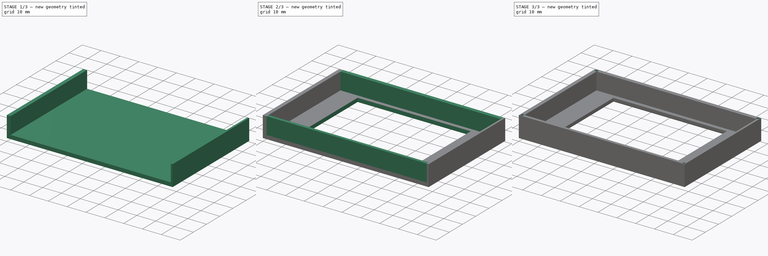
[diagram: build sequence overview — one tinted view per stage of 3, left to right]
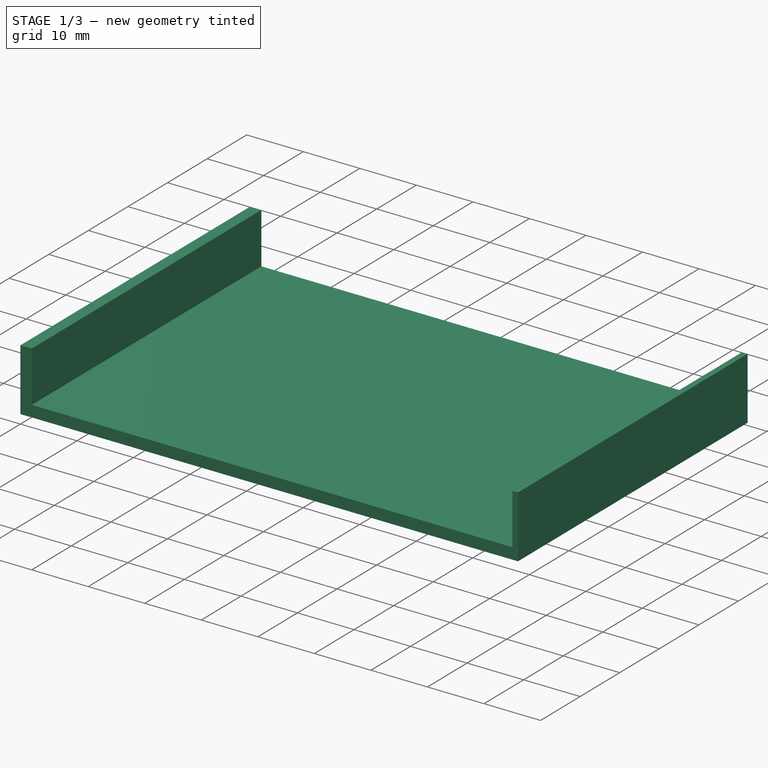
[diagram: stage 1 of 3 — iso view after this stage's code; geometry added in this stage tinted green]
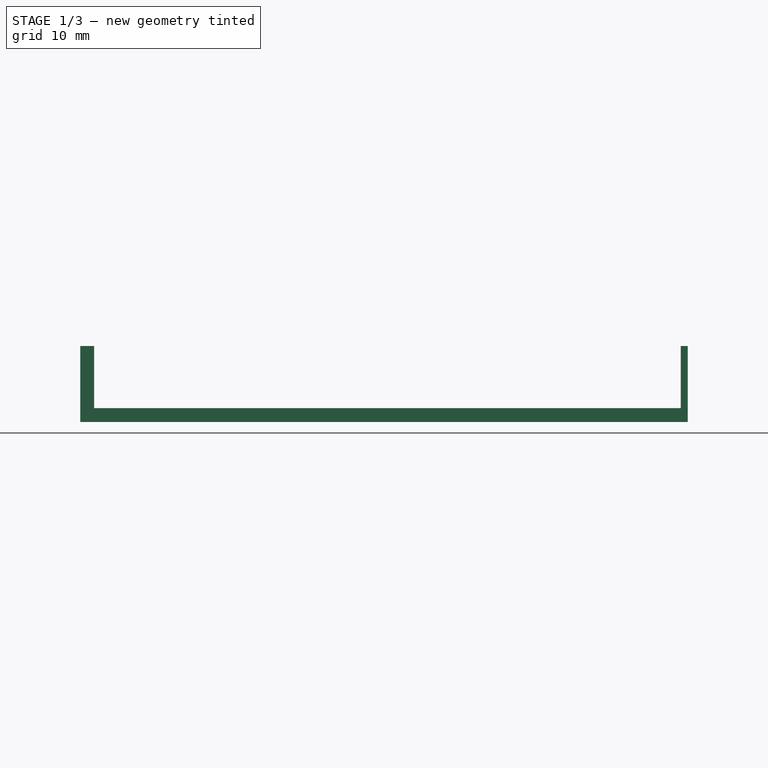
[diagram: stage 1 of 3 — front view after this stage's code; geometry added in this stage tinted green]
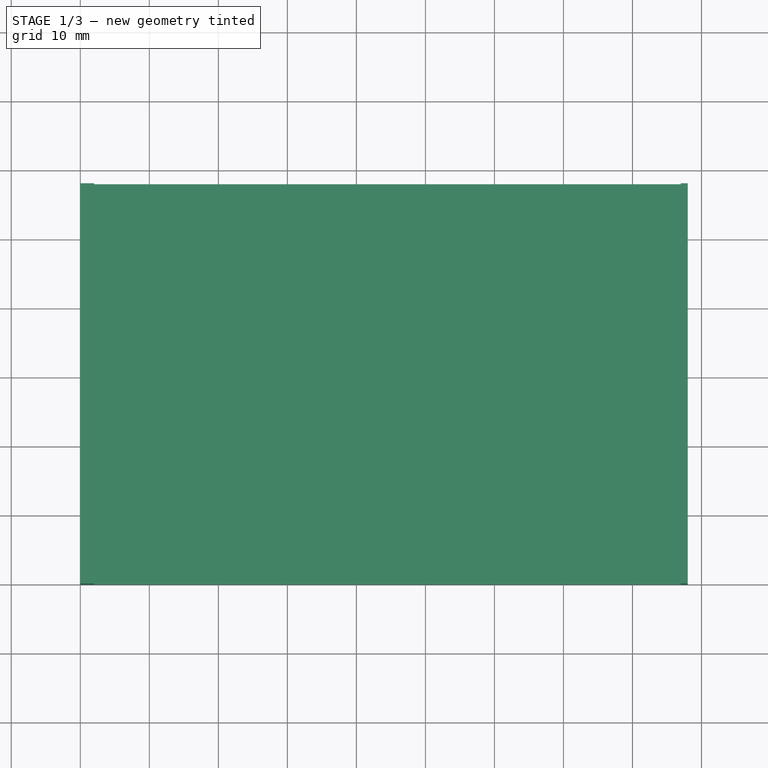
[diagram: stage 1 of 3 — top view after this stage's code; geometry added in this stage tinted green]
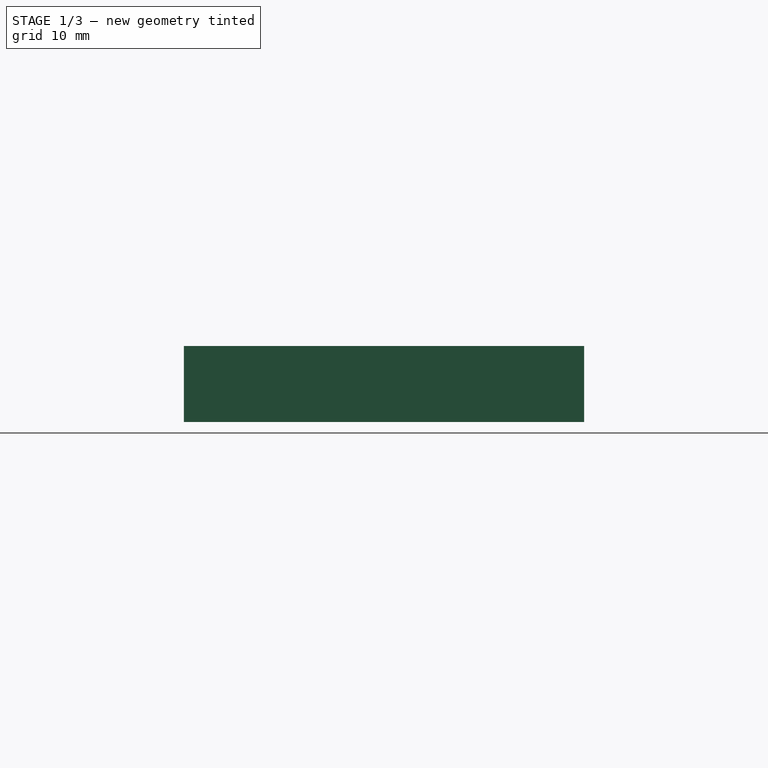
[diagram: stage 1 of 3 — right view after this stage's code; geometry added in this stage tinted green]
FCSTD DOCUMENT  (FreeCAD 1.0R39109 (Git))
Label: Upper_pad_outside
License: All rights reserved
LicenseURL: http://en.wikipedia.org/wiki/All_rights_reserved
objects: Sketcher::SketchObject×5, PartDesign::Pad×3, PartDesign::Pocket×2, PartDesign::Fillet×1, PartDesign::Body×1
note: 29 computed .brp shape members not serialized (recipe doc carries the construction recipe); baked Part::Feature solids carry a one-line shape summary decoded from their .brp

FEATURE [Sketcher::SketchObject] Sketch
  ArcFitTolerance = 1e-06
  AttachmentSupport = -> [XY_Plane]
  FullyConstrained = true
  MakeInternals = false
  MapMode = 5
  sketch-geometry (4):
    g0: LineSegment StartX=0 StartY=0 StartZ=0 EndX=88 EndY=0 EndZ=0
    g1: LineSegment StartX=88 StartY=0 StartZ=0 EndX=88 EndY=58 EndZ=0
    g2: LineSegment StartX=88 StartY=58 StartZ=0 EndX=0 EndY=58 EndZ=0
    g3: LineSegment StartX=0 StartY=58 StartZ=0 EndX=0 EndY=0 EndZ=0
  constraints (11):
    c: Coincident(g0,g1)
    c: Coincident(g1,g2)
    c: Coincident(g2,g3)
    c: Coincident(g3,g0)
    c: Horizontal(g0)
    c: Horizontal(g2)
    c: Vertical(g1)
    c: Vertical(g3)
    c: Distance(g1,g3) = 88
    c: Distance(g0,g2) = 58
    c: Coincident(g0,g-1)
FEATURE [PartDesign::Pad] Pad
  Direction = (0,0,1)
  Length = 2
  Length2 = 10
  Profile = -> Sketch
  ReferenceAxis = -> Sketch [N_Axis]
  Suppressed = false
  Type = 0
FEATURE [Sketcher::SketchObject] Sketch001
  ArcFitTolerance = 1e-06
  AttachmentSupport = -> [Pad]
  FullyConstrained = true
  MakeInternals = false
  MapMode = 5
  Placement = pos=(0,0,2) rot=(0,0,1;0rad)
  sketch-geometry (8):
    g0: LineSegment StartX=0 StartY=0 StartZ=0 EndX=2 EndY=0 EndZ=0
    g1: LineSegment StartX=2 StartY=0 StartZ=0 EndX=2 EndY=58 EndZ=0
    g2: LineSegment StartX=2 StartY=58 StartZ=0 EndX=0 EndY=58 EndZ=0
    g3: LineSegment StartX=0 StartY=58 StartZ=0 EndX=0 EndY=0 EndZ=0
    g4: LineSegment StartX=88 StartY=1e-06 StartZ=0 EndX=88 EndY=58 EndZ=0
    g5: LineSegment StartX=88 StartY=58 StartZ=0 EndX=87 EndY=58 EndZ=0
    g6: LineSegment StartX=87 StartY=58 StartZ=0 EndX=87 EndY=1e-06 EndZ=0
    g7: LineSegment StartX=87 StartY=1e-06 StartZ=0 EndX=88 EndY=1e-06 EndZ=0
  constraints (23):
    c: Coincident(g0,g1)
    c: Coincident(g1,g2)
    c: Coincident(g2,g3)
    c: Coincident(g3,g0)
    c: Horizontal(g0)
    c: Horizontal(g2)
    c: Vertical(g1)
    c: Vertical(g3)
    c: Distance(g1,g3) = 2
    c: Distance(g0,g2) = 58
    c: Coincident(g0,g-1)
    c: Coincident(g4,g5)
    c: Coincident(g5,g6)
    c: Coincident(g6,g7)
    c: Coincident(g7,g4)
    c: Vertical(g4)
    c: Vertical(g6)
    c: Horizontal(g5)
    c: Horizontal(g7)
    c: Distance(g4,g6) = 1
    c: Distance(g5,g7) = 58
    c: Distance(g6,g1) = 85
    c: Distance(g-1,g7) = 1e-06
FEATURE [PartDesign::Pad] Pad001
  BaseFeature = -> Pad
  Direction = (0,0,1)
  Length = 9
  Length2 = 10
  Profile = -> Sketch001
  ReferenceAxis = -> Sketch001 [N_Axis]
  Suppressed = false
  Type = 0
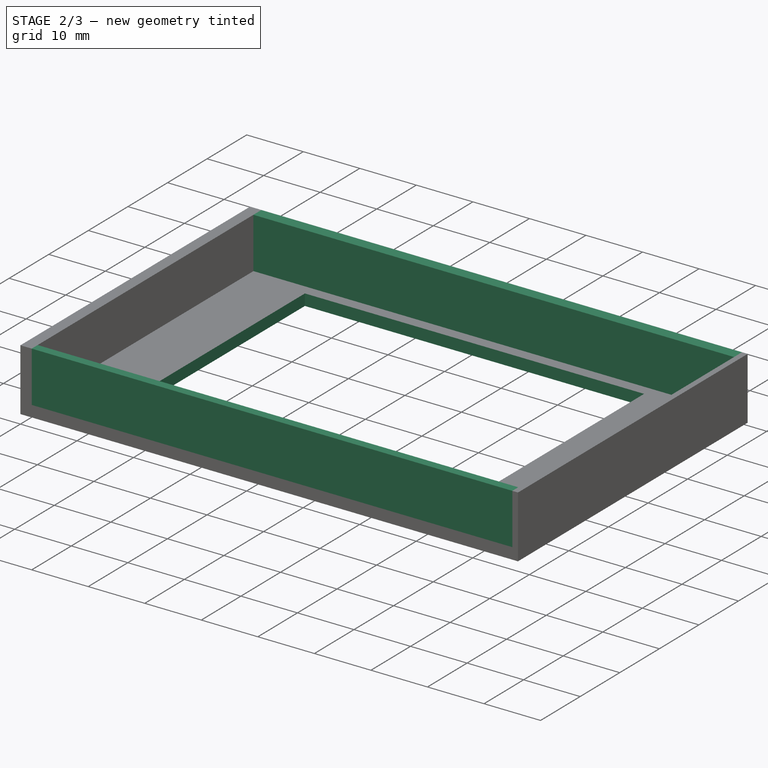
[diagram: stage 2 of 3 — iso view after this stage's code; geometry added in this stage tinted green]
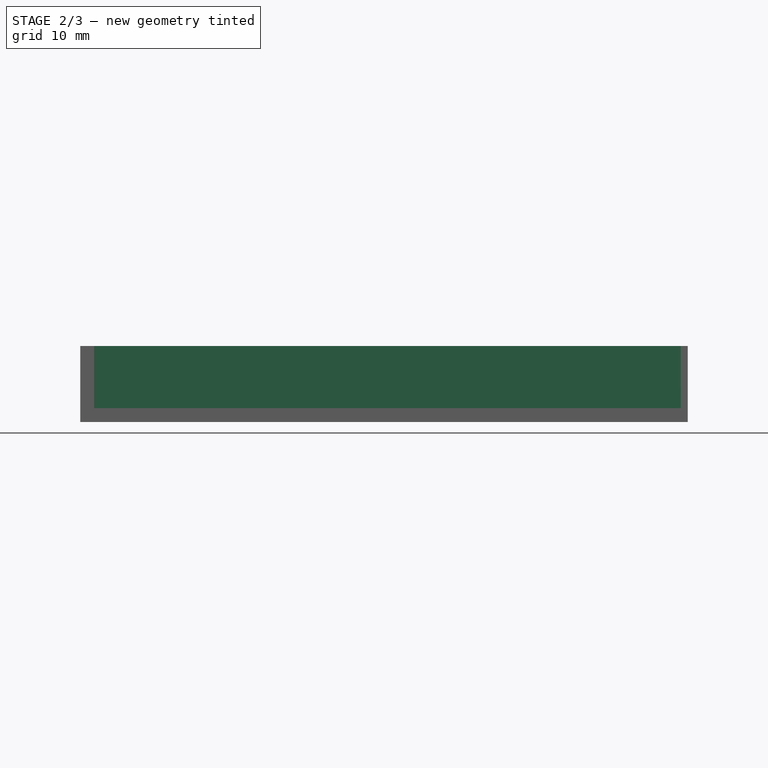
[diagram: stage 2 of 3 — front view after this stage's code; geometry added in this stage tinted green]
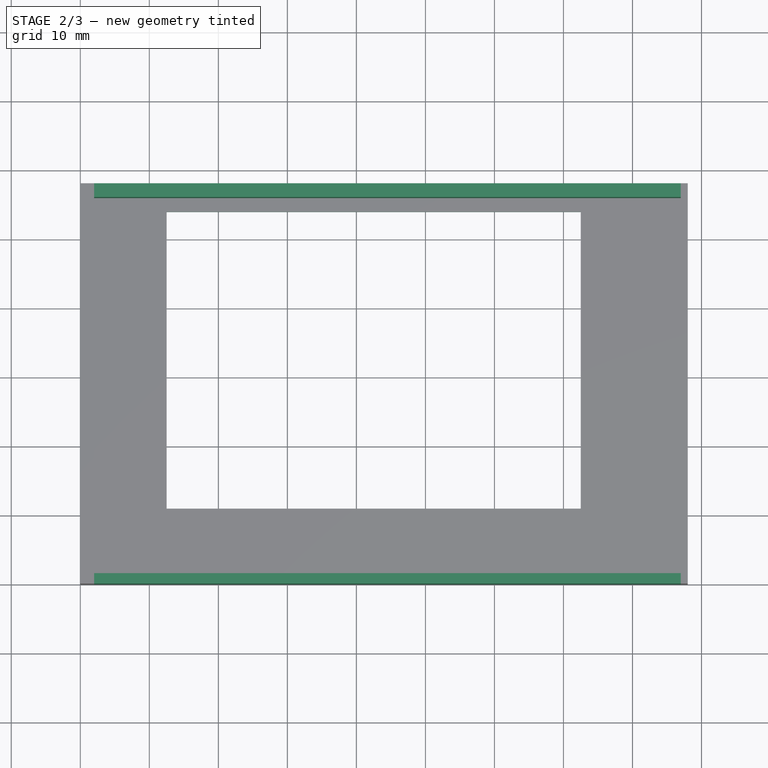
[diagram: stage 2 of 3 — top view after this stage's code; geometry added in this stage tinted green]
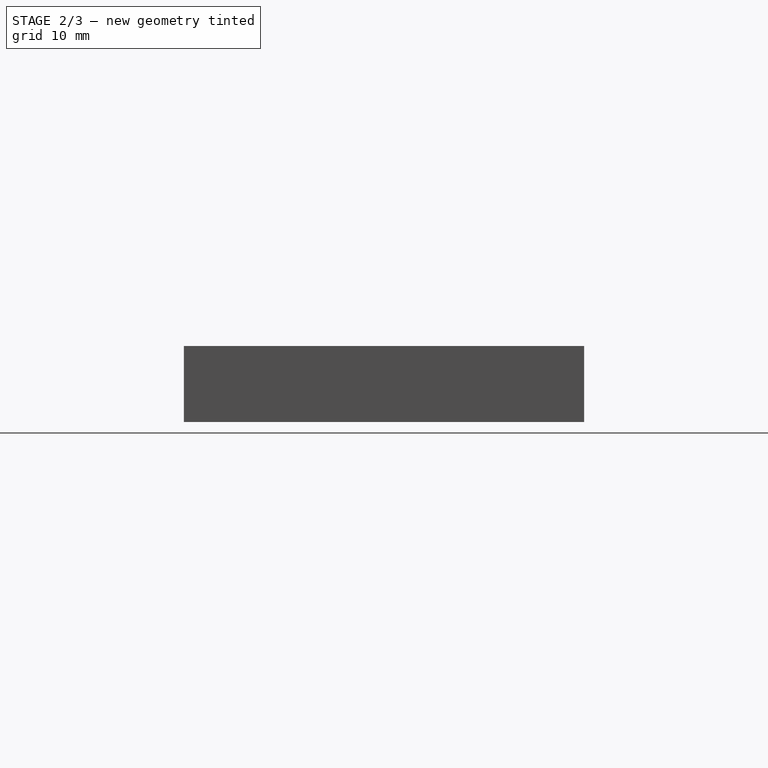
[diagram: stage 2 of 3 — right view after this stage's code; geometry added in this stage tinted green]
FEATURE [Sketcher::SketchObject] Sketch002
  ArcFitTolerance = 1e-06
  AttachmentSupport = -> [Pad001]
  FullyConstrained = true
  MakeInternals = false
  MapMode = 5
  Placement = pos=(0,0,2) rot=(0,0,1;0rad)
  sketch-geometry (8):
    g0: LineSegment StartX=2 StartY=1.5 StartZ=0 EndX=2 EndY=1e-06 EndZ=0
    g1: LineSegment StartX=2 StartY=1e-06 StartZ=0 EndX=87 EndY=1e-06 EndZ=0
    g2: LineSegment StartX=87 StartY=1e-06 StartZ=0 EndX=87 EndY=1.5 EndZ=0
    g3: LineSegment StartX=87 StartY=1.5 StartZ=0 EndX=2 EndY=1.5 EndZ=0
    g4: LineSegment StartX=2 StartY=58 StartZ=0 EndX=2 EndY=56 EndZ=0
    g5: LineSegment StartX=2 StartY=56 StartZ=0 EndX=87 EndY=56 EndZ=0
    g6: LineSegment StartX=87 StartY=56 StartZ=0 EndX=87 EndY=58 EndZ=0
    g7: LineSegment StartX=87 StartY=58 StartZ=0 EndX=2 EndY=58 EndZ=0
  constraints (24):
    c: Coincident(g0,g1)
    c: Coincident(g1,g2)
    c: Coincident(g2,g3)
    c: Coincident(g3,g0)
    c: Vertical(g0)
    c: Vertical(g2)
    c: Horizontal(g1)
    c: Horizontal(g3)
    c: Distance(g0,g2) = 85
    c: Distance(g1,g3) = 1.5
    c: Distance(g-2,g0) = 2
    c: Distance(g-1,g1) = 1e-06
    c: Coincident(g4,g5)
    c: Coincident(g5,g6)
    c: Coincident(g6,g7)
    c: Coincident(g7,g4)
    c: Vertical(g4)
    c: Vertical(g6)
    c: Horizontal(g5)
    c: Horizontal(g7)
    c: Distance(g4,g6) = 85
    c: Distance(g5,g7) = 2
    c: Distance(g-2,g4) = 2
    c: Distance(g3,g5) = 54.5
FEATURE [PartDesign::Pad] Pad002
  BaseFeature = -> Pad001
  Direction = (0,0,1)
  Length = 9
  Length2 = 10
  Profile = -> Sketch002
  ReferenceAxis = -> Sketch002 [N_Axis]
  Suppressed = false
  Type = 0
FEATURE [Sketcher::SketchObject] Sketch003
  ArcFitTolerance = 1e-06
  AttachmentSupport = -> [Pad002]
  FullyConstrained = true
  MakeInternals = false
  MapMode = 5
  Placement = pos=(0,0,2) rot=(0,0,1;0rad)
  sketch-geometry (4):
    g0: LineSegment StartX=12.5 StartY=54 StartZ=0 EndX=12.5 EndY=11 EndZ=0
    g1: LineSegment StartX=12.5 StartY=11 StartZ=0 EndX=72.5 EndY=11 EndZ=0
    g2: LineSegment StartX=72.5 StartY=11 StartZ=0 EndX=72.5 EndY=54 EndZ=0
    g3: LineSegment StartX=72.5 StartY=54 StartZ=0 EndX=12.5 EndY=54 EndZ=0
  constraints (12):
    c: Coincident(g0,g1)
    c: Coincident(g1,g2)
    c: Coincident(g2,g3)
    c: Coincident(g3,g0)
    c: Vertical(g0)
    c: Vertical(g2)
    c: Horizontal(g1)
    c: Horizontal(g3)
    c: Distance(g0,g2) = 60
    c: Distance(g1,g3) = 43
    c: Distance(g-1,g3) = 54
    c: Distance(g-2,g2) = 72.5
FEATURE [PartDesign::Pocket] Pocket
  BaseFeature = -> Pad002
  Direction = (0,0,-1)
  Length = 2
  Length2 = 5
  Profile = -> Sketch003
  ReferenceAxis = -> Sketch003 [N_Axis]
  Suppressed = false
  Type = 0
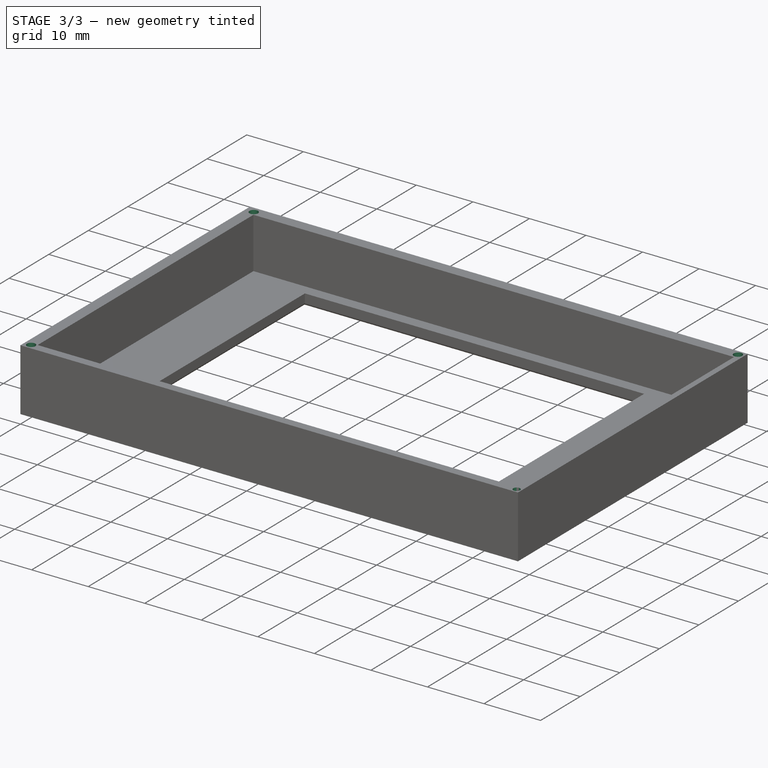
[diagram: stage 3 of 3 — iso view after this stage's code; geometry added in this stage tinted green]
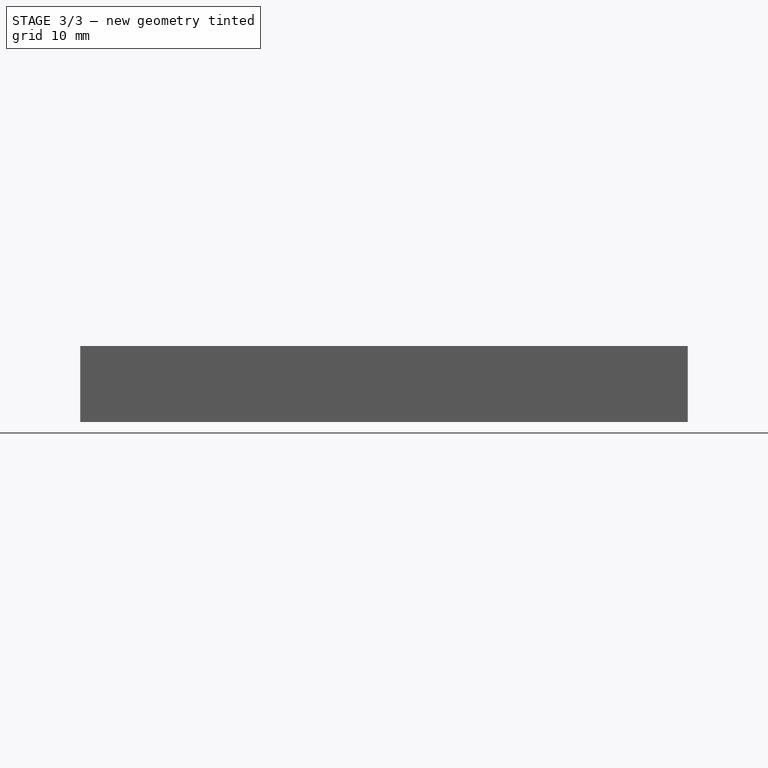
[diagram: stage 3 of 3 — front view after this stage's code; geometry added in this stage tinted green]
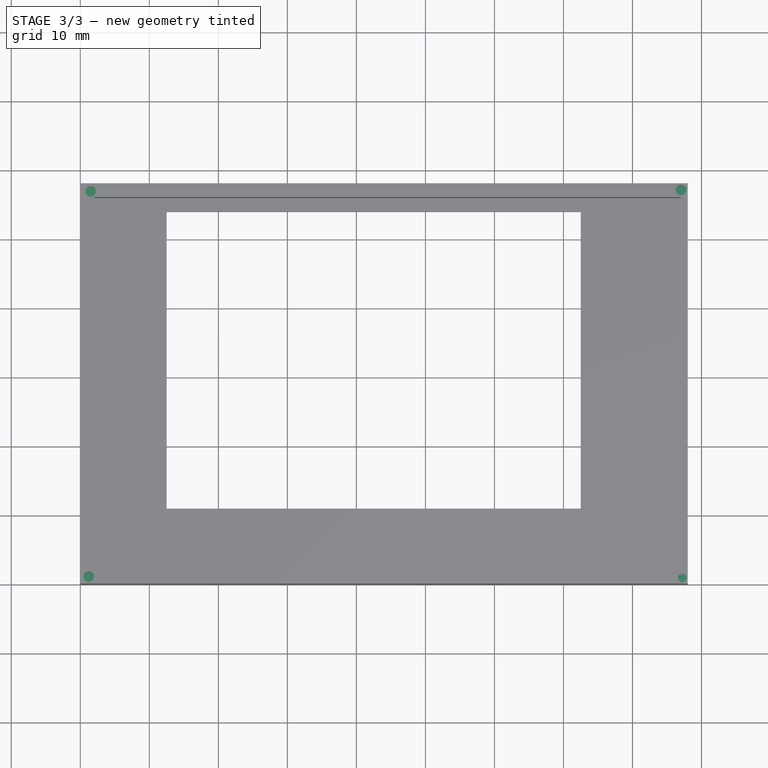
[diagram: stage 3 of 3 — top view after this stage's code; geometry added in this stage tinted green]
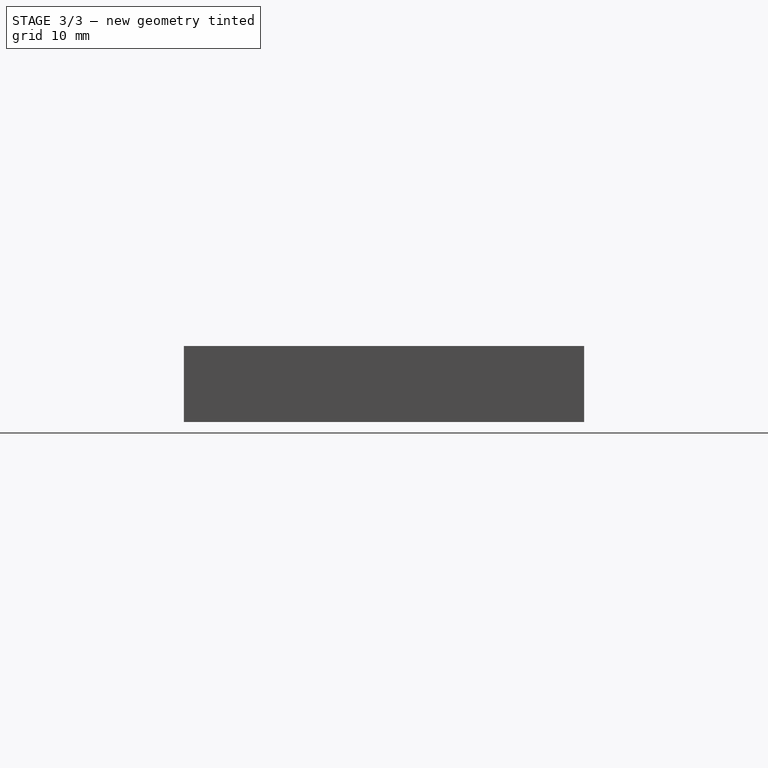
[diagram: stage 3 of 3 — right view after this stage's code; geometry added in this stage tinted green]
FEATURE [PartDesign::Fillet] Fillet
  Base = -> Pocket [Edge14,Edge15,Edge17,Edge16]
  BaseFeature = -> Pocket
  Radius = 0.5
  SupportTransform = false
  Suppressed = false
  UseAllEdges = false
FEATURE [Sketcher::SketchObject] Sketch004
  ArcFitTolerance = 1e-06
  AttachmentSupport = -> [Fillet]
  FullyConstrained = true
  MakeInternals = false
  MapMode = 5
  Placement = pos=(0,0,11) rot=(0,0,1;0rad)
  sketch-geometry (4):
    g0: Circle CenterX=1.2 CenterY=1 CenterZ=0 NormalX=0 NormalY=0 NormalZ=1 AngleXU=0 Radius=0.75
    g1: Circle CenterX=1.5 CenterY=56.8 CenterZ=0 NormalX=0 NormalY=0 NormalZ=1 AngleXU=0 Radius=0.75
    g2: Circle CenterX=87.2 CenterY=0.8 CenterZ=0 NormalX=0 NormalY=0 NormalZ=1 AngleXU=0 Radius=0.6
    g3: Circle CenterX=87 CenterY=57 CenterZ=0 NormalX=0 NormalY=0 NormalZ=1 AngleXU=0 Radius=0.75
  constraints (12):
    c: Diameter(g0) = 1.5
    c: Distance(g0,g-2) = 1.2
    c: Distance(g0,g-1) = 1
    c: Diameter(g1) = 1.5
    c: Distance(g1,g-1) = 56.8
    c: Distance(g1,g-2) = 1.5
    c: Diameter(g2) = 1.2
    c: DistanceX(g-1,g2) = 87.2
    c: Distance(g2,g-1) = 0.8
    c: Diameter(g3) = 1.5
    c: DistanceX(g-1,g3) = 87
    c: DistanceY(g-1,g3) = 57
FEATURE [PartDesign::Pocket] Pocket001
  BaseFeature = -> Fillet
  Direction = (0,0,-1)
  Length = 2
  Length2 = 5
  Profile = -> Sketch004
  ReferenceAxis = -> Sketch004 [N_Axis]
  Suppressed = false
  Type = 0
FEATURE [PartDesign::Body] Body  label="Zawartość"
  AllowCompound = false
  Group = -> [Sketch,Pad,Sketch001,Pad001,Sketch002,Pad002,Sketch003,Pocket,Fillet,Sketch004,Pocket001]
  Origin = -> Origin
  Tip = -> Pocket001
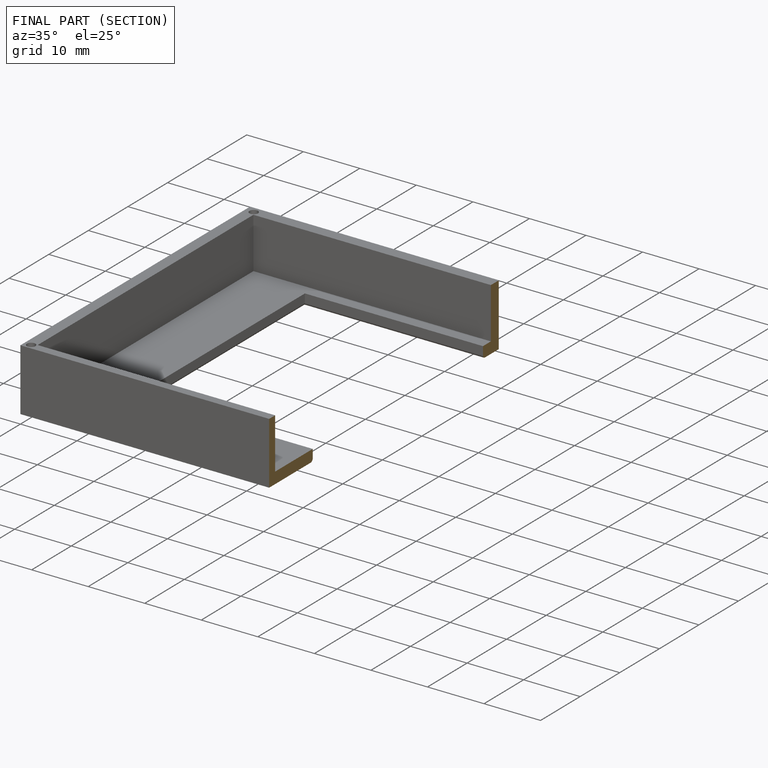
[diagram: finished part — half-section view (interior)]
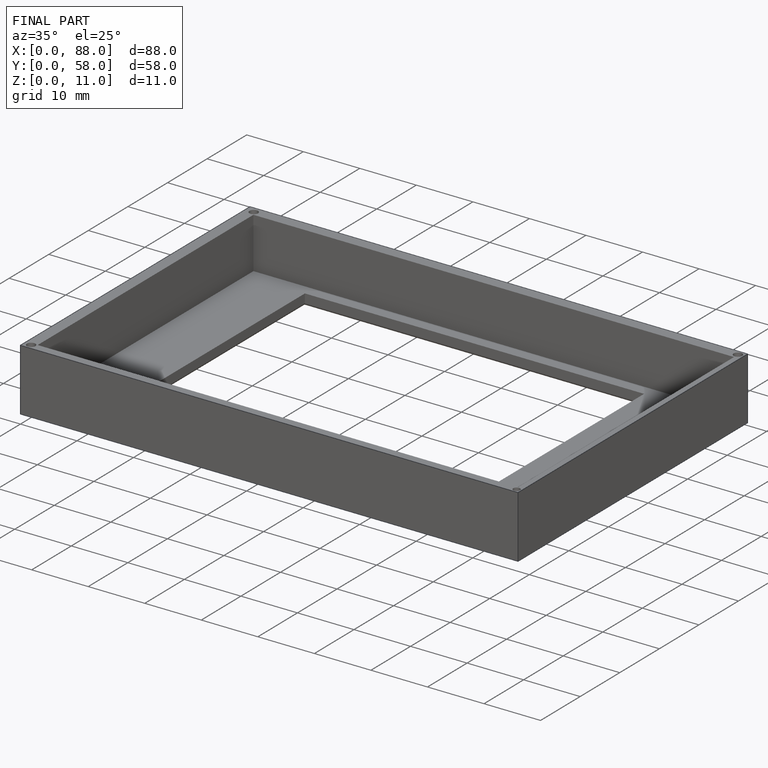
[diagram: finished part — iso view with bounding-box wireframe]
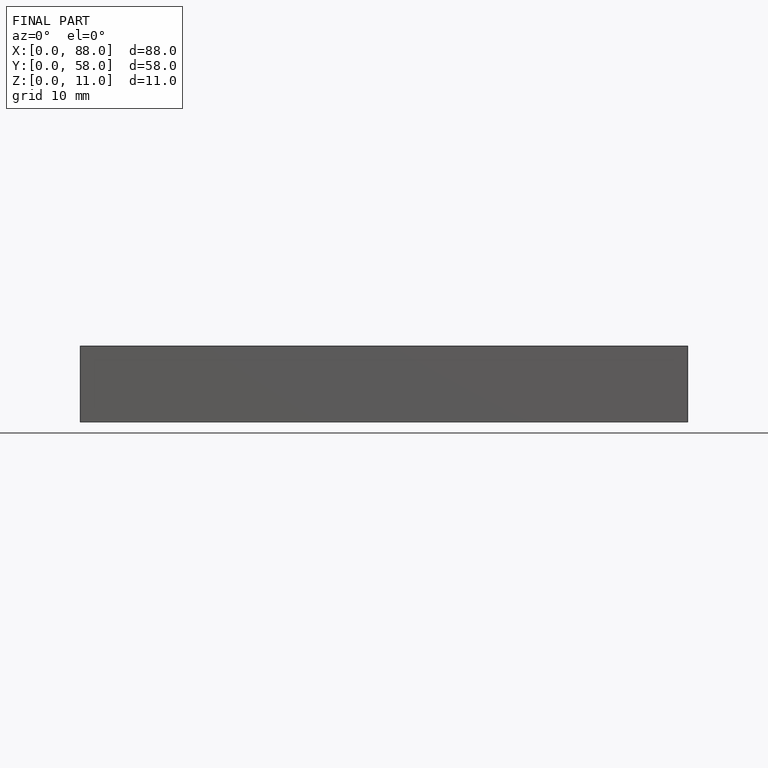
[diagram: finished part — front view with bounding-box wireframe]
